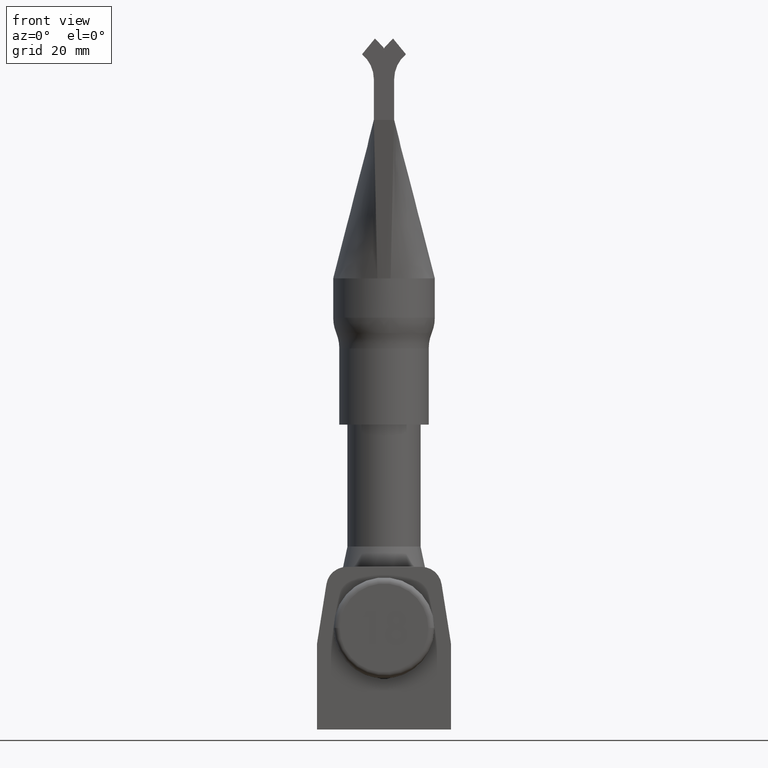
[diagram: clean part render]
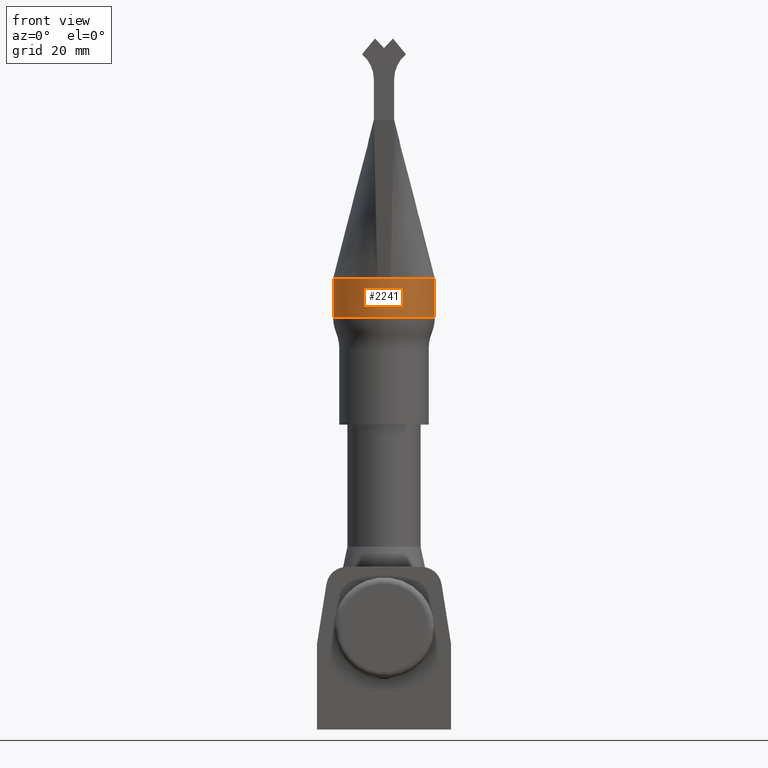
[diagram: same view with one face highlighted and labeled with its STEP entity id]
A machine part, front view. The second image highlights one B-rep face of the part: STEP entity #2241.
In plain terms, the highlighted cylindrical surface (partial cylindrical patch) has radius 12.5 mm, axis along (-0, -0, -1).
Its self-contained STEP definition (entity closure, byte-faithful):
#193 = DIRECTION ( 'NONE',  ( -0.0000000000000000000, -0.0000000000000000000, -1.000000000000000000 ) ) ;
#516 = ORIENTED_EDGE ( 'NONE', *, *, #7882, .F. ) ;
#1182 = CYLINDRICAL_SURFACE ( 'NONE', #8461, 12.50000000000000000 ) ;
#1385 = EDGE_CURVE ( 'NONE', #6509, #9765, #2953, .T. ) ;
#1900 = DIRECTION ( 'NONE',  ( -0.0000000000000000000, -0.0000000000000000000, -1.000000000000000000 ) ) ;
#1931 = DIRECTION ( 'NONE',  ( 0.0000000000000000000, 0.0000000000000000000, 1.000000000000000000 ) ) ;
#2141 = CARTESIAN_POINT ( 'NONE',  ( 1.089869168108722300, -12.46433820051645100, 36.00000000637530200 ) ) ;
#2241 = ADVANCED_FACE ( 'NONE', ( #12421 ), #1182, .T. ) ;
#2430 = DIRECTION ( 'NONE',  ( 0.0000000000000000000, 0.0000000000000000000, 1.000000000000000000 ) ) ;
#2953 = CIRCLE ( 'NONE', #12053, 12.50000000000000000 ) ;
#2961 = EDGE_LOOP ( 'NONE', ( #10823, #14809, #516, #16403, #9532, #4570 ) ) ;
#3025 = VECTOR ( 'NONE', #1900, 1000.000000000000000 ) ;
#3352 = CARTESIAN_POINT ( 'NONE',  ( 0.0000000000000000000, 0.0000000000000000000, 36.00000000000000000 ) ) ;
#3666 = CARTESIAN_POINT ( 'NONE',  ( -1.630689462588397600, -12.39323973739535300, 36.00000000000000000 ) ) ;
#3807 = CARTESIAN_POINT ( 'NONE',  ( 0.5449041371963289100, -12.50000659472836700, 36.00273873925046800 ) ) ;
#4339 = CARTESIAN_POINT ( 'NONE',  ( 12.50000000000000000, 1.530808498934191500E-015, 26.33151520035895700 ) ) ;
#4372 = CARTESIAN_POINT ( 'NONE',  ( -1.630689462588397600, -12.39323973739535300, 36.00000000000000000 ) ) ;
#4570 = ORIENTED_EDGE ( 'NONE', *, *, #1385, .T. ) ;
#4591 = CARTESIAN_POINT ( 'NONE',  ( -12.50000000000000000, 0.0000000000000000000, 26.33151520035895700 ) ) ;
#4610 = VERTEX_POINT ( 'NONE', #5481 ) ;
#5147 = DIRECTION ( 'NONE',  ( 1.000000000000000000, 0.0000000000000000000, 0.0000000000000000000 ) ) ;
#5481 = CARTESIAN_POINT ( 'NONE',  ( -12.50000000000000000, 2.395971889173533500E-015, 36.00000000000000700 ) ) ;
#6370 = VERTEX_POINT ( 'NONE', #9115 ) ;
#6509 = VERTEX_POINT ( 'NONE', #4591 ) ;
#6861 = CARTESIAN_POINT ( 'NONE',  ( 1.630688413461499200, -12.39323175096534000, 36.00000000000000000 ) ) ;
#7543 = CARTESIAN_POINT ( 'NONE',  ( 0.0000000000000000000, 0.0000000000000000000, 36.00000000000000000 ) ) ;
#7882 = EDGE_CURVE ( 'NONE', #11443, #13068, #20191, .T. ) ;
#8461 = AXIS2_PLACEMENT_3D ( 'NONE', #12912, #193, #11325 ) ;
#8925 = AXIS2_PLACEMENT_3D ( 'NONE', #7543, #18744, #18677 ) ;
#9115 = CARTESIAN_POINT ( 'NONE',  ( 12.50000000000000000, -3.730080316426838500E-016, 36.00000000000000700 ) ) ;
#9400 = LINE ( 'NONE', #12675, #20435 ) ;
#9532 = ORIENTED_EDGE ( 'NONE', *, *, #20339, .T. ) ;
#9765 = VERTEX_POINT ( 'NONE', #4339 ) ;
#10320 = EDGE_CURVE ( 'NONE', #6370, #9765, #11251, .T. ) ;
#10598 = EDGE_CURVE ( 'NONE', #13068, #6370, #15031, .T. ) ;
#10823 = ORIENTED_EDGE ( 'NONE', *, *, #10320, .F. ) ;
#11071 = EDGE_CURVE ( 'NONE', #4610, #11443, #17273, .T. ) ;
#11251 = LINE ( 'NONE', #16046, #3025 ) ;
#11325 = DIRECTION ( 'NONE',  ( -1.000000000000000000, 0.0000000000000000000, 0.0000000000000000000 ) ) ;
#11443 = VERTEX_POINT ( 'NONE', #4372 ) ;
#12053 = AXIS2_PLACEMENT_3D ( 'NONE', #15228, #2430, #13585 ) ;
#12421 = FACE_OUTER_BOUND ( 'NONE', #2961, .T. ) ;
#12675 = CARTESIAN_POINT ( 'NONE',  ( -12.50000000000000000, 0.0000000000000000000, 36.00000000000000000 ) ) ;
#12912 = CARTESIAN_POINT ( 'NONE',  ( 0.0000000000000000000, 0.0000000000000000000, 36.00000000000000000 ) ) ;
#13068 = VERTEX_POINT ( 'NONE', #14536 ) ;
#13336 = CARTESIAN_POINT ( 'NONE',  ( -0.5452066589022850400, -12.49999340344126100, 36.00273805592335900 ) ) ;
#13585 = DIRECTION ( 'NONE',  ( -1.000000000000000000, 0.0000000000000000000, 0.0000000000000000000 ) ) ;
#14536 = CARTESIAN_POINT ( 'NONE',  ( 1.630688413461499200, -12.39323175096534000, 36.00000000000000000 ) ) ;
#14809 = ORIENTED_EDGE ( 'NONE', *, *, #10598, .F. ) ;
#14845 = CARTESIAN_POINT ( 'NONE',  ( -1.089869034719093600, -12.46433821799269600, 36.00000000593976800 ) ) ;
#15031 = CIRCLE ( 'NONE', #8925, 12.50000000000000000 ) ;
#15228 = CARTESIAN_POINT ( 'NONE',  ( 0.0000000000000000000, 0.0000000000000000000, 26.33151520035895700 ) ) ;
#16046 = CARTESIAN_POINT ( 'NONE',  ( 12.50000000000000000, 1.530808498934191500E-015, 36.00000000000000000 ) ) ;
#16403 = ORIENTED_EDGE ( 'NONE', *, *, #11071, .F. ) ;
#17273 = CIRCLE ( 'NONE', #17536, 12.50000000000000000 ) ;
#17536 = AXIS2_PLACEMENT_3D ( 'NONE', #3352, #1931, #5147 ) ;
#18677 = DIRECTION ( 'NONE',  ( 1.000000000000000000, 0.0000000000000000000, 0.0000000000000000000 ) ) ;
#18744 = DIRECTION ( 'NONE',  ( 0.0000000000000000000, 0.0000000000000000000, 1.000000000000000000 ) ) ;
#19221 = DIRECTION ( 'NONE',  ( -0.0000000000000000000, -0.0000000000000000000, -1.000000000000000000 ) ) ;
#20191 = B_SPLINE_CURVE_WITH_KNOTS ( 'NONE', 3,
 ( #3666, #14845, #13336, #3807, #2141, #6861 ),
 .UNSPECIFIED., .F., .F.,
 ( 4, 2, 4 ),
 ( 0.0000000000000000000, 0.001634366496135113200, 0.003268732992270226400 ),
 .UNSPECIFIED. ) ;
#20339 = EDGE_CURVE ( 'NONE', #4610, #6509, #9400, .T. ) ;
#20435 = VECTOR ( 'NONE', #19221, 1000.000000000000000 ) ;